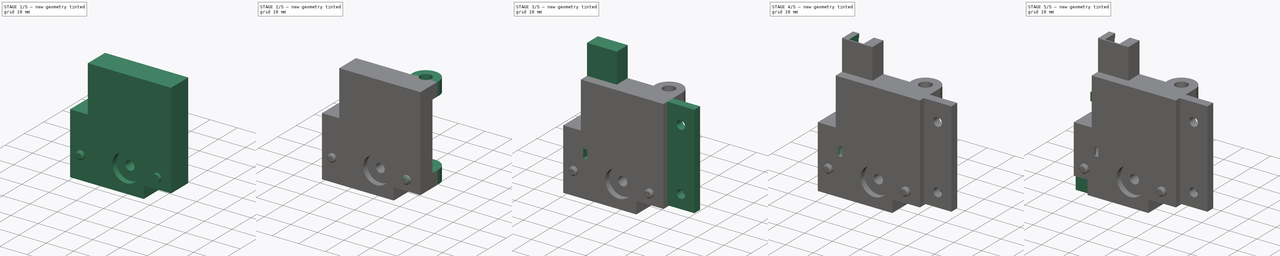
[diagram: build sequence overview — one tinted view per stage of 5, left to right]
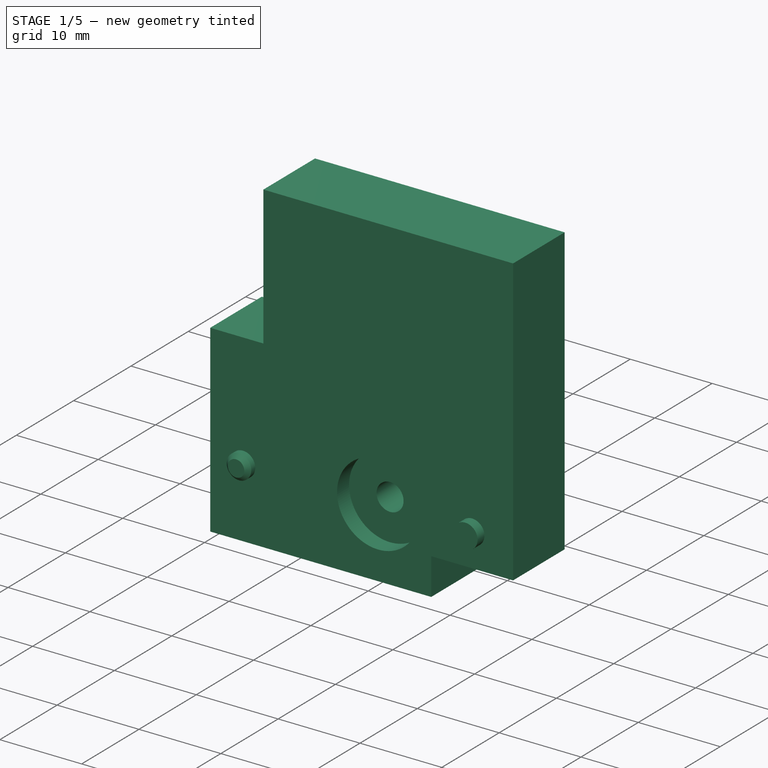
[diagram: stage 1 of 5 — iso view after this stage's code; geometry added in this stage tinted green]
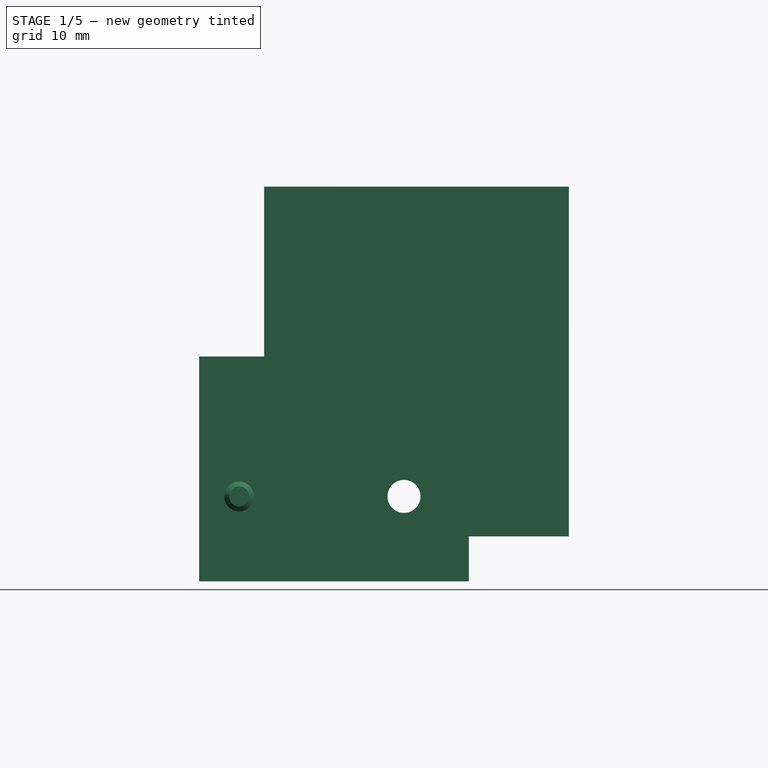
[diagram: stage 1 of 5 — front view after this stage's code; geometry added in this stage tinted green]
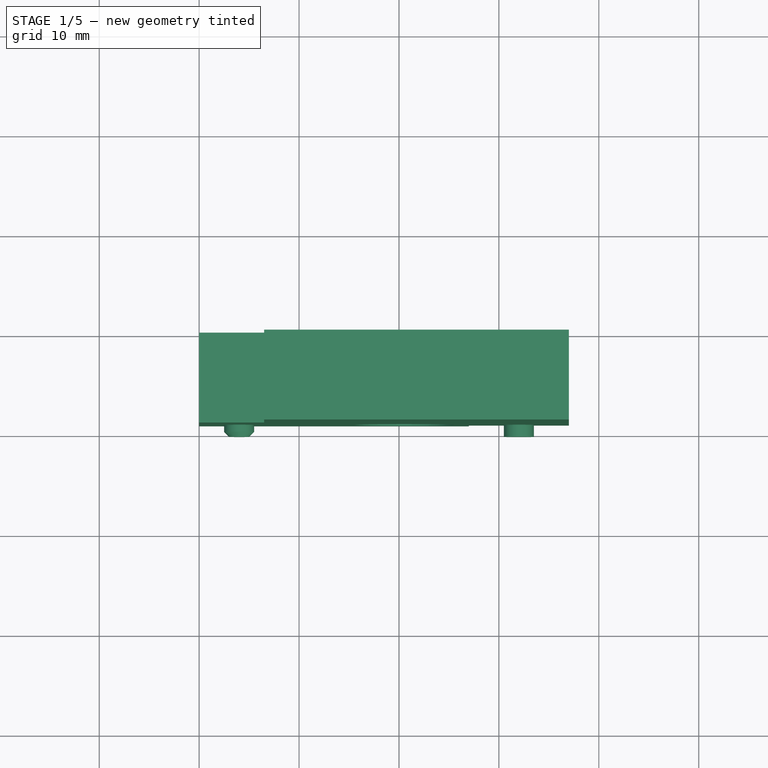
[diagram: stage 1 of 5 — top view after this stage's code; geometry added in this stage tinted green]
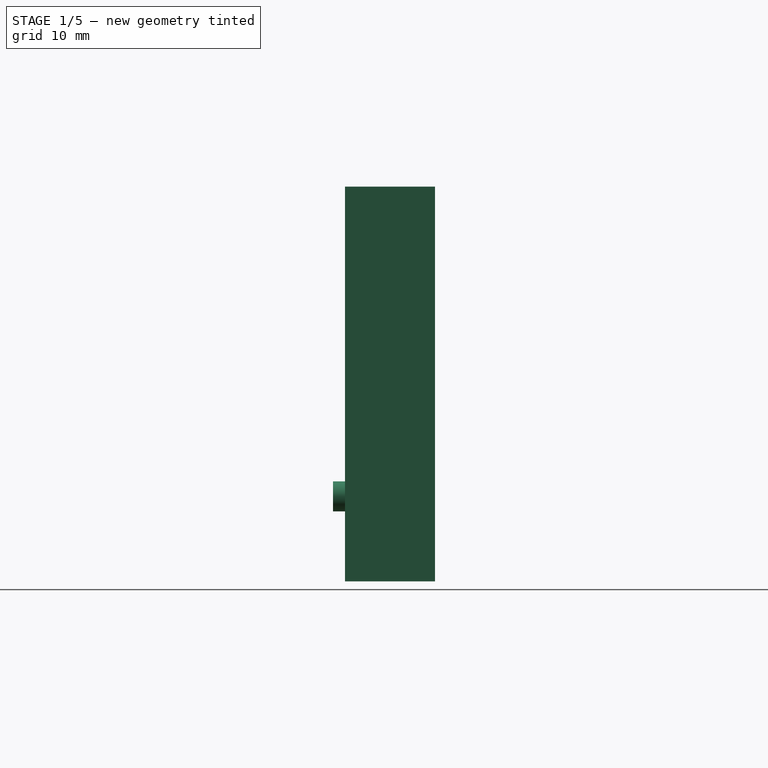
[diagram: stage 1 of 5 — right view after this stage's code; geometry added in this stage tinted green]
FCSTD DOCUMENT  (FreeCAD 1.0R39319 (Git))
Label: Chinon-lever-thing
License: All rights reserved
LicenseURL: https://en.wikipedia.org/wiki/All_rights_reserved
objects: Sketcher::SketchObject×31, PartDesign::Pad×13, PartDesign::Pocket×10, PartDesign::Hole×5, PartDesign::Chamfer×2, PartDesign::Body×1
note: 153 computed .brp shape members not serialized (recipe doc carries the construction recipe); baked Part::Feature solids carry a one-line shape summary decoded from their .brp

FEATURE [Sketcher::SketchObject] Sketch
  ArcFitTolerance = 1e-06
  FullyConstrained = true
  MakeInternals = false
  Placement = pos=(0,0,0) rot=(1,0,0;1.5708rad)
  sketch-geometry (8):
    g0: LineSegment StartX=0 StartY=0 StartZ=0 EndX=27 EndY=0 EndZ=0
    g1: LineSegment StartX=27 StartY=0 StartZ=0 EndX=27 EndY=4.5 EndZ=0
    g2: LineSegment StartX=27 StartY=4.5 StartZ=0 EndX=37 EndY=4.5 EndZ=0
    g3: LineSegment StartX=37 StartY=4.5 StartZ=0 EndX=37 EndY=39.5 EndZ=0
    g4: LineSegment StartX=37 StartY=39.5 StartZ=0 EndX=6.5 EndY=39.5 EndZ=0
    g5: LineSegment StartX=6.5 StartY=39.5 StartZ=0 EndX=6.5 EndY=22.5 EndZ=0
    g6: LineSegment StartX=6.5 StartY=22.5 StartZ=0 EndX=0 EndY=22.5 EndZ=0
    g7: LineSegment StartX=0 StartY=22.5 StartZ=0 EndX=0 EndY=0 EndZ=0
  constraints (23):
    c: Coincident(g-1,g0)
    c: PointOnObject(g0,g-1)
    c: Coincident(g0,g1)
    c: Vertical(g1)
    c: Coincident(g1,g2)
    c: Horizontal(g2)
    c: Coincident(g2,g3)
    c: Vertical(g3)
    c: Coincident(g3,g4)
    c: Horizontal(g4)
    c: Coincident(g4,g5)
    c: Vertical(g5)
    c: Coincident(g5,g6)
    c: PointOnObject(g6,g-2)
    c: Horizontal(g6)
    c: Coincident(g6,g7)
    c: Coincident(g7,g0)
    c: DistanceX(g-1,g0) = 27
    c: DistanceY(g-1,g1) = 4.5
    c: DistanceX(g-1,g2) = 37
    c: DistanceY(g-1,g3) = 39.5
    c: DistanceX(g-1,g4) = 6.5
    c: Distance(g6,g-1) = 22.5
FEATURE [PartDesign::Pad] Pad
  Direction = (0,-1,0)
  Length = 9
  Length2 = 10
  Placement = pos=(0,0,0) rot=(1,0,0;1.5708rad)
  Profile = -> Sketch
  ReferenceAxis = -> Sketch [N_Axis]
  Refine = true
  Suppressed = false
  Type = 0
FEATURE [Sketcher::SketchObject] Sketch001
  ArcFitTolerance = 1e-06
  AttachmentSupport = -> [Pad]
  FullyConstrained = true
  MakeInternals = false
  MapMode = 5
  Placement = pos=(37,0,0) rot=(0.707107,0,0.707107;3.14159rad)
FEATURE [Sketcher::SketchObject] Sketch002
  ArcFitTolerance = 1e-06
  AttachmentSupport = -> [Pad]
  FullyConstrained = true
  MakeInternals = false
  MapMode = 5
  Placement = pos=(0,-9,-2e-15) rot=(1,0,0;1.5708rad)
  sketch-geometry (3):
    g0: Circle CenterX=4 CenterY=8.5 CenterZ=0 NormalX=0 NormalY=0 NormalZ=1 AngleXU=0 Radius=1.5
    g1: Circle CenterX=32 CenterY=8.5 CenterZ=0 NormalX=0 NormalY=0 NormalZ=1 AngleXU=0 Radius=1.5
    g2: Circle CenterX=20.5 CenterY=8.5 CenterZ=0 NormalX=0 NormalY=0 NormalZ=1 AngleXU=0 Radius=5
  constraints (9):
    c: Diameter(g0) = 3
    c: DistanceX(g-1,g0) = 4
    c: DistanceY(g-1,g0) = 8.5
    c: Diameter(g1) = 3
    c: DistanceY(g-1,g1) = 8.5
    c: DistanceX(g-1,g1) = 32
    c: Diameter(g2) = 10
    c: DistanceY(g-1,g2) = 8.5
    c: DistanceX(g-1,g2) = 20.5
FEATURE [PartDesign::Pad] Pad001
  BaseFeature = -> Pad
  Direction = (0,-1,2e-16)
  Length = 1.2
  Length2 = 10
  Placement = pos=(0,0,0) rot=(1,0,0;1.5708rad)
  Profile = -> Sketch002 [Edge1]
  ReferenceAxis = -> Sketch002 [N_Axis]
  Refine = true
  Suppressed = false
  Type = 0
FEATURE [PartDesign::Chamfer] Chamfer
  Angle = 45
  Base = -> Pad001 [Edge27]
  BaseFeature = -> Pad001
  ChamferType = 0
  FlipDirection = false
  Placement = pos=(0,0,0) rot=(1,0,0;1.5708rad)
  Refine = true
  Size = 0.5
  Size2 = 1
  SupportTransform = false
  Suppressed = false
  UseAllEdges = false
FEATURE [Sketcher::SketchObject] Sketch003
  ArcFitTolerance = 1e-06
  AttachmentSupport = -> [Chamfer]
  FullyConstrained = true
  MakeInternals = false
  MapMode = 5
  Placement = pos=(0,-9,-2e-15) rot=(1,0,0;1.5708rad)
  sketch-geometry (1):
    g0: Circle CenterX=20.5 CenterY=8.5 CenterZ=0 NormalX=0 NormalY=0 NormalZ=1 AngleXU=0 Radius=5
  constraints (3):
    c: Diameter(g0) = 10
    c: DistanceX(g-1,g0) = 20.5
    c: DistanceY(g-1,g0) = 8.5
FEATURE [PartDesign::Pocket] Pocket
  BaseFeature = -> Chamfer
  Direction = (0,1,-2e-16)
  Length = 2.1
  Length2 = 5
  Placement = pos=(0,0,0) rot=(1,0,0;1.5708rad)
  Profile = -> Sketch003
  ReferenceAxis = -> Sketch003 [N_Axis]
  Refine = true
  Suppressed = false
  Type = 0
FEATURE [Sketcher::SketchObject] Sketch004
  ArcFitTolerance = 1e-06
  AttachmentSupport = -> [Pocket]
  FullyConstrained = true
  MakeInternals = false
  MapMode = 5
  Placement = pos=(0,-6.9,0) rot=(1,0,0;1.5708rad)
  sketch-geometry (1):
    g0: Circle CenterX=20.5 CenterY=8.5 CenterZ=0 NormalX=0 NormalY=0 NormalZ=1 AngleXU=0 Radius=1.65
  constraints (3):
    c: Diameter(g0) = 3.3
    c: DistanceX(g-1,g0) = 20.5
    c: DistanceY(g-1,g0) = 8.5
FEATURE [PartDesign::Hole] Hole
  BaseFeature = -> Pocket
  CustomThreadClearance = 0
  Depth = 25
  DepthType = 0
  Diameter = 3.3
  DrillForDepth = false
  DrillPoint = 1
  DrillPointAngle = 118
  HoleCutCountersinkAngle = 90
  HoleCutCustomValues = false
  HoleCutDepth = 0
  HoleCutDiameter = 6.1
  HoleCutType = 0
  ModelThread = false
  Placement = pos=(0,0,0) rot=(1,0,0;1.5708rad)
  Profile = -> Sketch004
  Refine = true
  Suppressed = false
  Tapered = false
  TaperedAngle = 90
  ThreadClass = 0
  ThreadDepth = 25
  ThreadDepthType = 0
  ThreadDirection = 0
  ThreadFit = 0
  ThreadSize = 0
  ThreadType = 0
  Threaded = false
  UseCustomThreadClearance = false
FEATURE [Sketcher::SketchObject] Sketch005
  ArcFitTolerance = 1e-06
  AttachmentSupport = -> [Hole]
  FullyConstrained = true
  MakeInternals = false
  MapMode = 5
  Placement = pos=(0,-9,-2e-15) rot=(1,0,0;1.5708rad)
  sketch-geometry (1):
    g0: Circle CenterX=32 CenterY=8.5 CenterZ=0 NormalX=0 NormalY=0 NormalZ=1 AngleXU=0 Radius=1.5
  constraints (3):
    c: Diameter(g0) = 3
    c: DistanceX(g-1,g0) = 32
    c: DistanceY(g-1,g0) = 8.5
FEATURE [PartDesign::Pad] Pad002
  BaseFeature = -> Hole
  Direction = (0,-1,2e-16)
  Length = 1.2
  Length2 = 10
  Placement = pos=(0,0,0) rot=(1,0,0;1.5708rad)
  Profile = -> Sketch005
  ReferenceAxis = -> Sketch005 [N_Axis]
  Refine = true
  Suppressed = false
  Type = 0
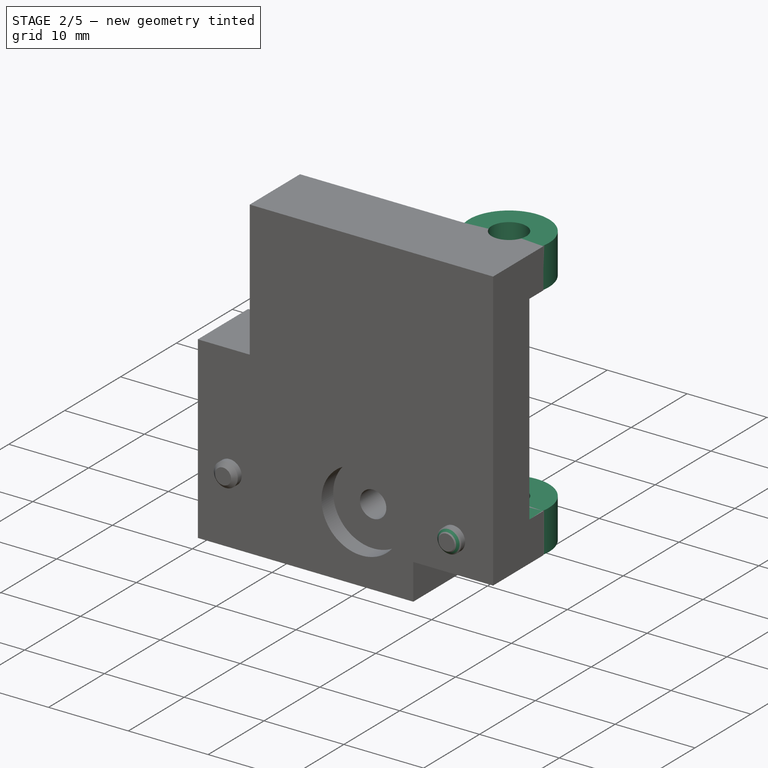
[diagram: stage 2 of 5 — iso view after this stage's code; geometry added in this stage tinted green]
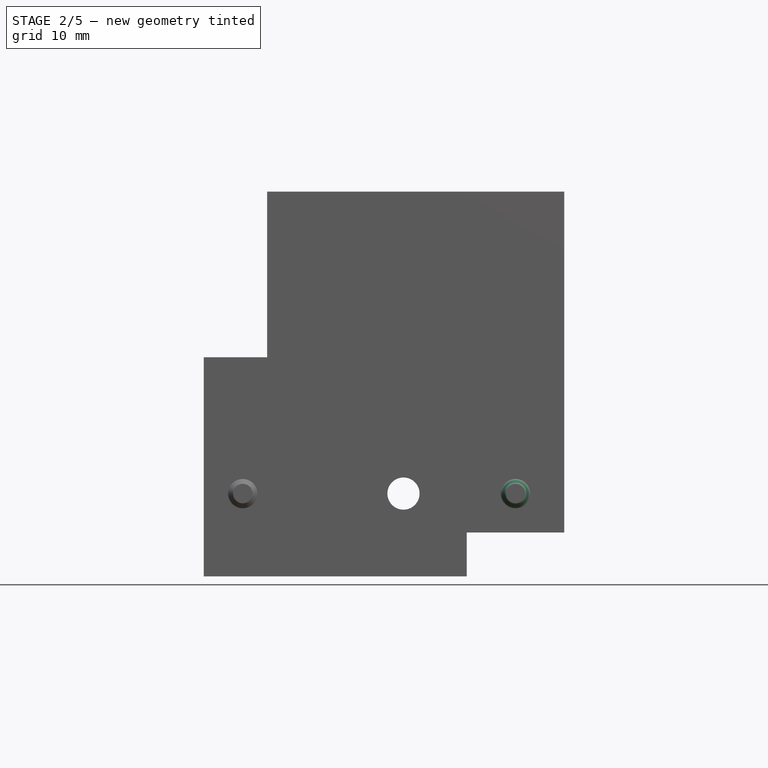
[diagram: stage 2 of 5 — front view after this stage's code; geometry added in this stage tinted green]
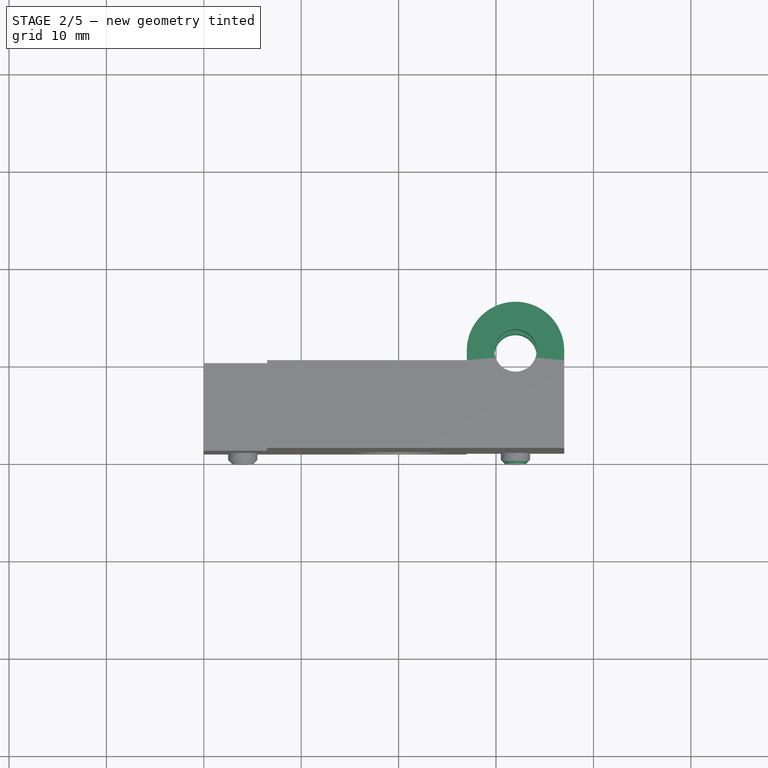
[diagram: stage 2 of 5 — top view after this stage's code; geometry added in this stage tinted green]
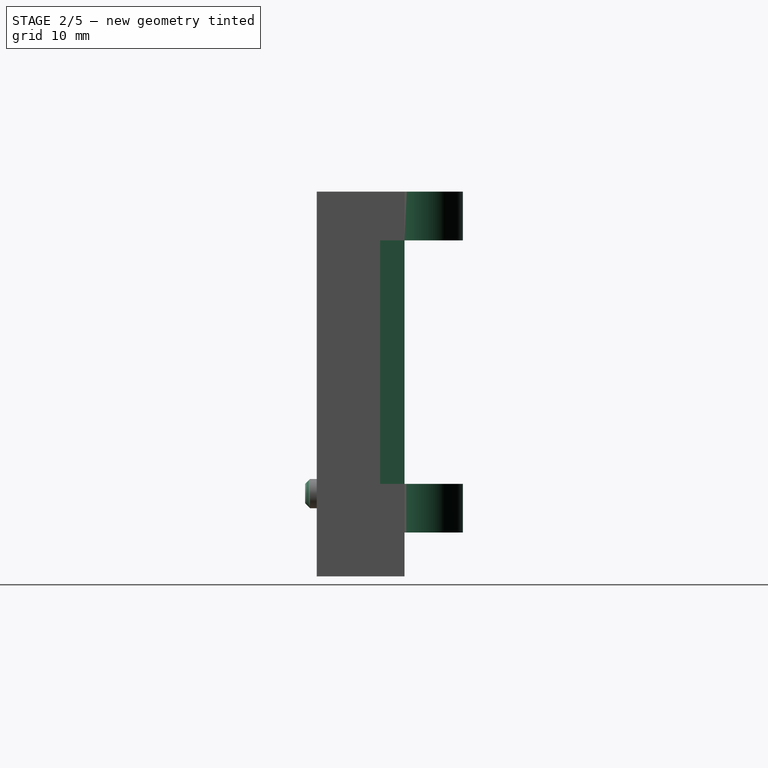
[diagram: stage 2 of 5 — right view after this stage's code; geometry added in this stage tinted green]
FEATURE [PartDesign::Chamfer] Chamfer001
  Angle = 45
  Base = -> Pad002 [Edge33]
  BaseFeature = -> Pad002
  ChamferType = 0
  FlipDirection = false
  Placement = pos=(0,0,0) rot=(1,0,0;1.5708rad)
  Refine = true
  Size = 0.5
  Size2 = 1
  SupportTransform = false
  Suppressed = false
  UseAllEdges = false
FEATURE [Sketcher::SketchObject] Sketch006
  ArcFitTolerance = 1e-06
  AttachmentSupport = -> [Chamfer001]
  FullyConstrained = true
  MakeInternals = false
  MapMode = 5
  Placement = pos=(0,8.7e-15,39.5) rot=(0,0,1;3.14159rad)
  sketch-geometry (1):
    g0: Circle CenterX=-32 CenterY=-1 CenterZ=0 NormalX=0 NormalY=0 NormalZ=1 AngleXU=0 Radius=5
  constraints (3):
    c: Diameter(g0) = 10
    c: DistanceX(g0,g-1) = 32
    c: DistanceY(g-1,g0) = -1
FEATURE [PartDesign::Pad] Pad003
  BaseFeature = -> Chamfer001
  Direction = (0,0,1)
  Length = 5
  Length2 = 10
  Placement = pos=(0,0,0) rot=(1,0,0;1.5708rad)
  Profile = -> Sketch006
  ReferenceAxis = -> Sketch006 [N_Axis]
  Refine = true
  Reversed = true
  Suppressed = false
  Type = 0
FEATURE [Sketcher::SketchObject] Sketch007
  ArcFitTolerance = 1e-06
  AttachmentSupport = -> [Pad003]
  FullyConstrained = true
  MakeInternals = false
  MapMode = 5
  Placement = pos=(0,0,39.5) rot=(0,0,1;3.14159rad)
  sketch-geometry (1):
    g0: Circle CenterX=-32 CenterY=-1 CenterZ=0 NormalX=0 NormalY=0 NormalZ=1 AngleXU=0 Radius=2
  constraints (3):
    c: Diameter(g0) = 4
    c: DistanceX(g0,g-1) = 32
    c: Distance(g0,g-1) = 1
FEATURE [PartDesign::Hole] Hole001  label="ShaftBore1"
  BaseFeature = -> Pad003
  CustomThreadClearance = 0
  Depth = 5
  DepthType = 0
  Diameter = 4.35
  DrillForDepth = false
  DrillPoint = 1
  DrillPointAngle = 118
  HoleCutCountersinkAngle = 90
  HoleCutCustomValues = false
  HoleCutDepth = 0
  HoleCutDiameter = 6.1
  HoleCutType = 0
  ModelThread = false
  Placement = pos=(0,0,0) rot=(1,0,0;1.5708rad)
  Profile = -> Sketch007
  Refine = true
  Suppressed = false
  Tapered = false
  TaperedAngle = 90
  ThreadClass = 0
  ThreadDepth = 5
  ThreadDepthType = 0
  ThreadDirection = 0
  ThreadFit = 0
  ThreadSize = 0
  ThreadType = 0
  Threaded = false
  UseCustomThreadClearance = false
FEATURE [Sketcher::SketchObject] Sketch008
  ArcFitTolerance = 1e-06
  AttachmentSupport = -> [Hole001]
  FullyConstrained = true
  MakeInternals = false
  MapMode = 5
  Placement = pos=(0,1e-15,4.5) rot=(1,0,0;3.14159rad)
  sketch-geometry (1):
    g0: Circle CenterX=32 CenterY=-1 CenterZ=0 NormalX=0 NormalY=0 NormalZ=1 AngleXU=0 Radius=5
  constraints (3):
    c: Diameter(g0) = 10
    c: DistanceX(g-1,g0) = 32
    c: DistanceY(g0,g-1) = 1
FEATURE [PartDesign::Pad] Pad004
  BaseFeature = -> Hole001
  Direction = (0,0,-1)
  Length = 5
  Length2 = 10
  Placement = pos=(0,0,0) rot=(1,0,0;1.5708rad)
  Profile = -> Sketch008
  ReferenceAxis = -> Sketch008 [N_Axis]
  Refine = true
  Reversed = true
  Suppressed = false
  Type = 0
FEATURE [Sketcher::SketchObject] Sketch009
  ArcFitTolerance = 1e-06
  AttachmentSupport = -> [Pad004]
  FullyConstrained = true
  MakeInternals = false
  MapMode = 5
  Placement = pos=(0,5e-16,4.5) rot=(1,0,0;3.14159rad)
  sketch-geometry (1):
    g0: Circle CenterX=32 CenterY=-1 CenterZ=0 NormalX=0 NormalY=0 NormalZ=1 AngleXU=0 Radius=2
  constraints (3):
    c: Diameter(g0) = 4
    c: DistanceX(g-1,g0) = 32
    c: DistanceY(g0,g-1) = 1
FEATURE [PartDesign::Hole] Hole002  label="ShaftBore2"
  BaseFeature = -> Pad004
  CustomThreadClearance = 0
  Depth = 5
  DepthType = 0
  Diameter = 4.35
  DrillForDepth = false
  DrillPoint = 1
  DrillPointAngle = 118
  HoleCutCountersinkAngle = 90
  HoleCutCustomValues = false
  HoleCutDepth = 0
  HoleCutDiameter = 6.1
  HoleCutType = 0
  ModelThread = false
  Placement = pos=(0,0,0) rot=(1,0,0;1.5708rad)
  Profile = -> Sketch009
  Refine = true
  Suppressed = false
  Tapered = false
  TaperedAngle = 90
  ThreadClass = 0
  ThreadDepth = 5
  ThreadDepthType = 0
  ThreadDirection = 0
  ThreadFit = 0
  ThreadSize = 0
  ThreadType = 0
  Threaded = false
  UseCustomThreadClearance = false
FEATURE [Sketcher::SketchObject] Sketch010
  ArcFitTolerance = 1e-06
  AttachmentSupport = -> [Hole002]
  FullyConstrained = true
  MakeInternals = false
  MapMode = 5
  Placement = pos=(0,0,0) rot=(-1,0,0;1.5708rad)
  sketch-geometry (4):
    g0: LineSegment StartX=27 StartY=-9.5 StartZ=0 EndX=27 EndY=-34.5 EndZ=0
    g1: LineSegment StartX=27 StartY=-34.5 StartZ=0 EndX=37 EndY=-34.5 EndZ=0
    g2: LineSegment StartX=37 StartY=-34.5 StartZ=0 EndX=37 EndY=-9.5 EndZ=0
    g3: LineSegment StartX=37 StartY=-9.5 StartZ=0 EndX=27 EndY=-9.5 EndZ=0
  constraints (12):
    c: Coincident(g0,g1)
    c: Coincident(g1,g2)
    c: Coincident(g2,g3)
    c: Coincident(g3,g0)
    c: Vertical(g0)
    c: Vertical(g2)
    c: Horizontal(g1)
    c: Horizontal(g3)
    c: DistanceX(g-1,g0) = 27
    c: DistanceY(g2,g-1) = 9.5
    c: DistanceY(g1,g-1) = 34.5
    c: DistanceX(g-1,g2) = 37
FEATURE [PartDesign::Pocket] Pocket001
  BaseFeature = -> Hole002
  Direction = (0,-1,-2e-16)
  Length = 2.5
  Length2 = 5
  Placement = pos=(0,0,0) rot=(1,0,0;1.5708rad)
  Profile = -> Sketch010
  ReferenceAxis = -> Sketch010 [N_Axis]
  Refine = true
  Suppressed = false
  Type = 0
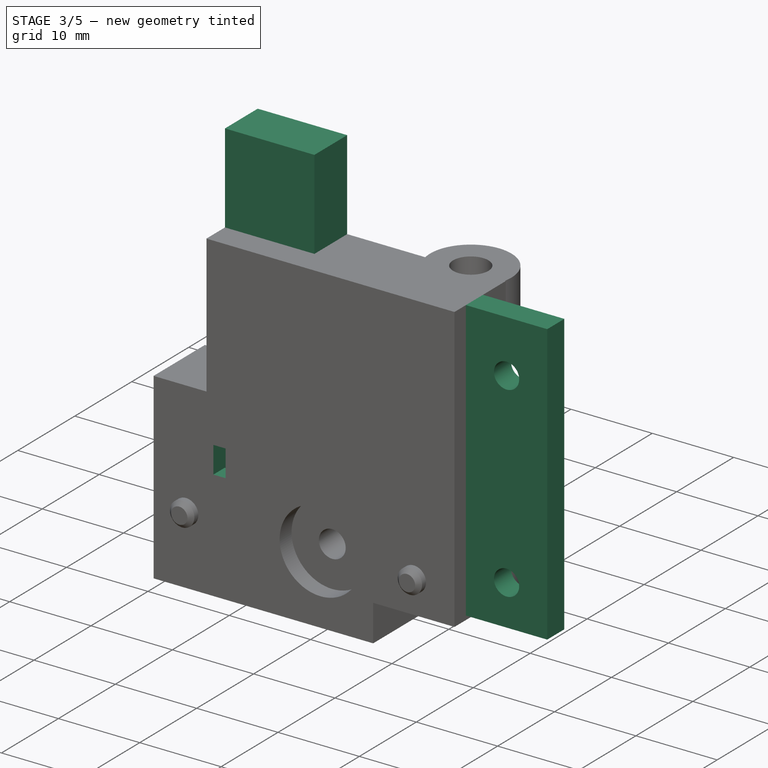
[diagram: stage 3 of 5 — iso view after this stage's code; geometry added in this stage tinted green]
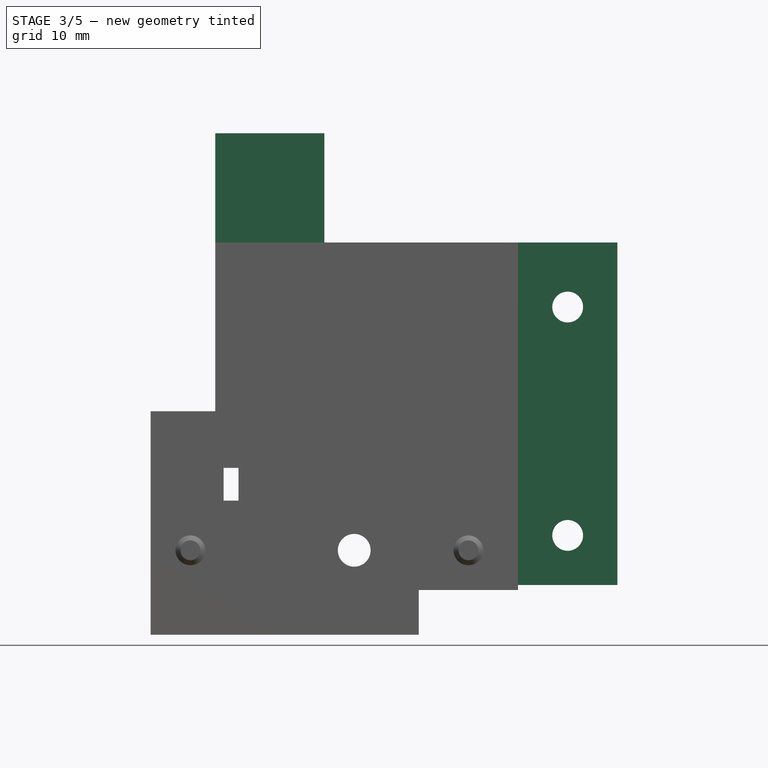
[diagram: stage 3 of 5 — front view after this stage's code; geometry added in this stage tinted green]
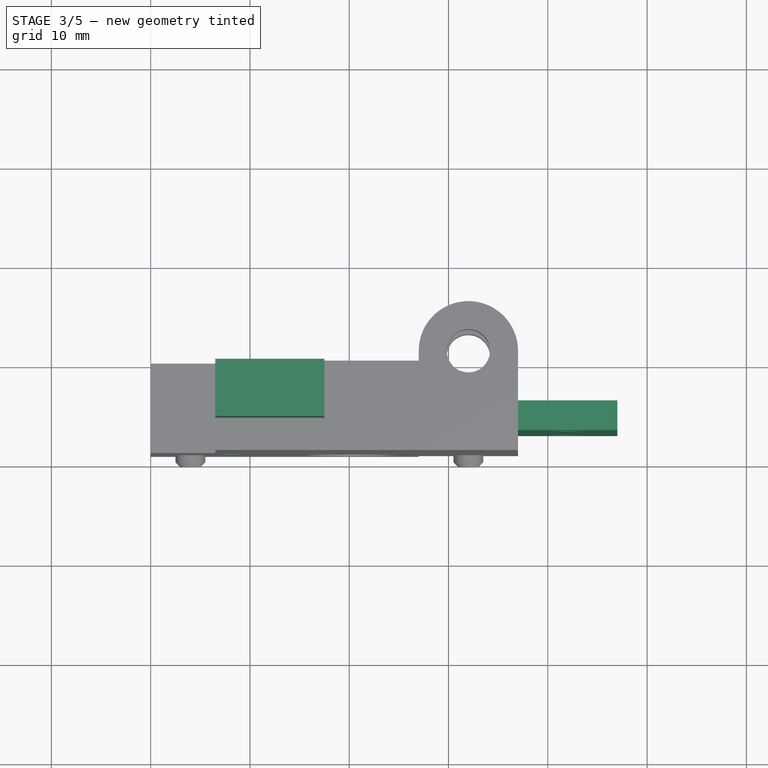
[diagram: stage 3 of 5 — top view after this stage's code; geometry added in this stage tinted green]
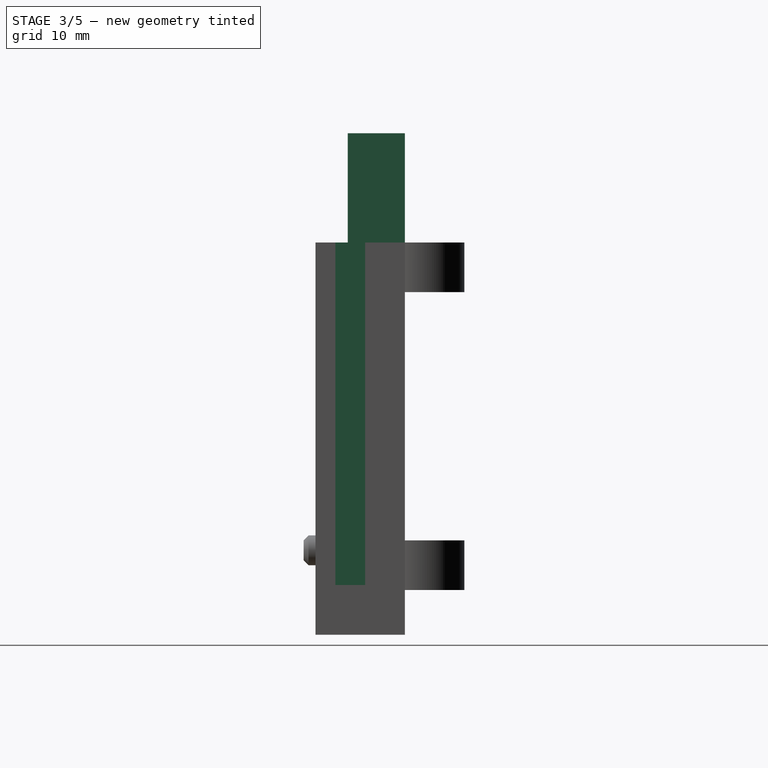
[diagram: stage 3 of 5 — right view after this stage's code; geometry added in this stage tinted green]
FEATURE [Sketcher::SketchObject] Sketch011
  ArcFitTolerance = 1e-06
  AttachmentSupport = -> [Pocket001]
  FullyConstrained = true
  MakeInternals = false
  MapMode = 5
  Placement = pos=(0,0,39.5) rot=(0,0,1;3.14159rad)
  sketch-geometry (4):
    g0: LineSegment StartX=-6.5 StartY=5.75 StartZ=0 EndX=-17.5 EndY=5.75 EndZ=0
    g1: LineSegment StartX=-17.5 StartY=5.75 StartZ=0 EndX=-17.5 EndY=0 EndZ=0
    g2: LineSegment StartX=-17.5 StartY=0 StartZ=0 EndX=-6.5 EndY=0 EndZ=0
    g3: LineSegment StartX=-6.5 StartY=0 StartZ=0 EndX=-6.5 EndY=5.75 EndZ=0
  constraints (12):
    c: Coincident(g0,g1)
    c: Coincident(g1,g2)
    c: Coincident(g2,g3)
    c: Coincident(g3,g0)
    c: Horizontal(g0)
    c: Horizontal(g2)
    c: Vertical(g1)
    c: Vertical(g3)
    c: Distance(g1,g3) = 11
    c: Distance(g0,g2) = 5.75
    c: PointOnObject(g1,g-1)
    c: DistanceX(g2,g-1) = 6.5
FEATURE [PartDesign::Pad] Pad005
  BaseFeature = -> Pocket001
  Direction = (0,0,1)
  Length = 11
  Length2 = 10
  Placement = pos=(0,0,0) rot=(1,0,0;1.5708rad)
  Profile = -> Sketch011
  ReferenceAxis = -> Sketch011 [N_Axis]
  Refine = true
  Suppressed = false
  Type = 0
FEATURE [Sketcher::SketchObject] Sketch012
  ArcFitTolerance = 1e-06
  AttachmentSupport = -> [Pad005]
  FullyConstrained = true
  MakeInternals = false
  MapMode = 5
  Placement = pos=(37,0,0) rot=(0.707107,0,0.707107;3.14159rad)
  sketch-geometry (4):
    g0: LineSegment StartX=5 StartY=7 StartZ=0 EndX=5 EndY=4 EndZ=0
    g1: LineSegment StartX=5 StartY=4 StartZ=0 EndX=39.5 EndY=4 EndZ=0
    g2: LineSegment StartX=39.5 StartY=4 StartZ=0 EndX=39.5 EndY=7 EndZ=0
    g3: LineSegment StartX=39.5 StartY=7 StartZ=0 EndX=5 EndY=7 EndZ=0
  constraints (12):
    c: Coincident(g0,g1)
    c: Coincident(g1,g2)
    c: Coincident(g2,g3)
    c: Coincident(g3,g0)
    c: Vertical(g0)
    c: Vertical(g2)
    c: Horizontal(g1)
    c: Horizontal(g3)
    c: Distance(g0,g2) = 34.5
    c: Distance(g1,g3) = 3
    c: DistanceX(g-1,g0) = 5
    c: DistanceY(g-1,g1) = 4
FEATURE [PartDesign::Pad] Pad006
  BaseFeature = -> Pad005
  Direction = (1,0,-2e-16)
  Length = 10
  Length2 = 10
  Placement = pos=(0,0,0) rot=(1,0,0;1.5708rad)
  Profile = -> Sketch012
  ReferenceAxis = -> Sketch012 [N_Axis]
  Refine = true
  Suppressed = false
  Type = 0
FEATURE [Sketcher::SketchObject] Sketch013
  ArcFitTolerance = 1e-06
  AttachmentSupport = -> [Pad006]
  FullyConstrained = true
  MakeInternals = false
  MapMode = 5
  Placement = pos=(0,-7,0) rot=(1,0,0;1.5708rad)
  sketch-geometry (1):
    g0: Circle CenterX=42 CenterY=10 CenterZ=0 NormalX=0 NormalY=0 NormalZ=1 AngleXU=0 Radius=1.5
  constraints (3):
    c: Diameter(g0) = 3
    c: DistanceX(g-1,g0) = 42
    c: DistanceY(g-1,g0) = 10
FEATURE [PartDesign::Hole] Hole003
  BaseFeature = -> Pad006
  CustomThreadClearance = 0
  Depth = 25
  DepthType = 0
  Diameter = 3.1
  DrillForDepth = false
  DrillPoint = 1
  DrillPointAngle = 118
  HoleCutCountersinkAngle = 90
  HoleCutCustomValues = false
  HoleCutDepth = 0
  HoleCutDiameter = 6.1
  HoleCutType = 0
  ModelThread = false
  Placement = pos=(0,0,0) rot=(1,0,0;1.5708rad)
  Profile = -> Sketch013
  Refine = true
  Suppressed = false
  Tapered = false
  TaperedAngle = 90
  ThreadClass = 0
  ThreadDepth = 25
  ThreadDepthType = 0
  ThreadDirection = 0
  ThreadFit = 0
  ThreadSize = 0
  ThreadType = 0
  Threaded = false
  UseCustomThreadClearance = false
FEATURE [Sketcher::SketchObject] Sketch014
  ArcFitTolerance = 1e-06
  AttachmentSupport = -> [Hole003]
  FullyConstrained = true
  MakeInternals = false
  MapMode = 5
  Placement = pos=(0,-7,0) rot=(1,0,0;1.5708rad)
  sketch-geometry (1):
    g0: Circle CenterX=42 CenterY=33 CenterZ=0 NormalX=0 NormalY=0 NormalZ=1 AngleXU=0 Radius=1.5
  constraints (3):
    c: Diameter(g0) = 3
    c: DistanceX(g-1,g0) = 42
    c: DistanceY(g-1,g0) = 33
FEATURE [PartDesign::Hole] Hole004
  BaseFeature = -> Hole003
  CustomThreadClearance = 0
  Depth = 25
  DepthType = 0
  Diameter = 3.1
  DrillForDepth = false
  DrillPoint = 1
  DrillPointAngle = 118
  HoleCutCountersinkAngle = 90
  HoleCutCustomValues = false
  HoleCutDepth = 0
  HoleCutDiameter = 6.1
  HoleCutType = 0
  ModelThread = false
  Placement = pos=(0,0,0) rot=(1,0,0;1.5708rad)
  Profile = -> Sketch014
  Refine = true
  Suppressed = false
  Tapered = false
  TaperedAngle = 90
  ThreadClass = 0
  ThreadDepth = 25
  ThreadDepthType = 0
  ThreadDirection = 0
  ThreadFit = 0
  ThreadSize = 0
  ThreadType = 0
  Threaded = false
  UseCustomThreadClearance = false
FEATURE [Sketcher::SketchObject] Sketch015
  ArcFitTolerance = 1e-06
  AttachmentSupport = -> [Hole004]
  FullyConstrained = true
  MakeInternals = false
  MapMode = 5
  Placement = pos=(0,-9,-2e-15) rot=(1,0,0;1.5708rad)
  sketch-geometry (4):
    g0: LineSegment StartX=7.35 StartY=13.5 StartZ=0 EndX=8.85 EndY=13.5 EndZ=0
    g1: LineSegment StartX=8.85 StartY=13.5 StartZ=0 EndX=8.85 EndY=16.8 EndZ=0
    g2: LineSegment StartX=8.85 StartY=16.8 StartZ=0 EndX=7.35 EndY=16.8 EndZ=0
    g3: LineSegment StartX=7.35 StartY=16.8 StartZ=0 EndX=7.35 EndY=13.5 EndZ=0
  constraints (12):
    c: Coincident(g0,g1)
    c: Coincident(g1,g2)
    c: Coincident(g2,g3)
    c: Coincident(g3,g0)
    c: Horizontal(g0)
    c: Horizontal(g2)
    c: Vertical(g1)
    c: Vertical(g3)
    c: Distance(g1,g3) = 1.5
    c: Distance(g0,g2) = 3.3
    c: DistanceY(g-1,g0) = 13.5
    c: DistanceX(g-1,g2) = 7.35
FEATURE [PartDesign::Pocket] Pocket002
  BaseFeature = -> Hole004
  Direction = (0,1,-2e-16)
  Length = 2
  Length2 = 5
  Placement = pos=(0,0,0) rot=(1,0,0;1.5708rad)
  Profile = -> Sketch015
  ReferenceAxis = -> Sketch015 [N_Axis]
  Refine = true
  Suppressed = false
  Type = 0
FEATURE [Sketcher::SketchObject] Sketch016
  ArcFitTolerance = 1e-06
  AttachmentSupport = -> [Pocket002]
  FullyConstrained = true
  MakeInternals = false
  MapMode = 5
  Placement = pos=(0,4.3e-15,0) rot=(-1,0,0;1.5708rad)
  sketch-geometry (4):
    g0: LineSegment StartX=4.5 StartY=-10 StartZ=0 EndX=4.5 EndY=-18 EndZ=0
    g1: LineSegment StartX=4.5 StartY=-18 StartZ=0 EndX=12.5 EndY=-18 EndZ=0
    g2: LineSegment StartX=12.5 StartY=-18 StartZ=0 EndX=12.5 EndY=-10 EndZ=0
    g3: LineSegment StartX=12.5 StartY=-10 StartZ=0 EndX=4.5 EndY=-10 EndZ=0
  constraints (12):
    c: Coincident(g0,g1)
    c: Coincident(g1,g2)
    c: Coincident(g2,g3)
    c: Coincident(g3,g0)
    c: Vertical(g0)
    c: Vertical(g2)
    c: Horizontal(g1)
    c: Horizontal(g3)
    c: Distance(g0,g2) = 8
    c: Distance(g1,g3) = 8
    c: DistanceX(g-1,g0) = 4.5
    c: DistanceY(g2,g-1) = 10
FEATURE [PartDesign::Pocket] Pocket003
  BaseFeature = -> Pocket002
  Direction = (0,-1,-2e-16)
  Length = 7
  Length2 = 5
  Placement = pos=(0,0,0) rot=(1,0,0;1.5708rad)
  Profile = -> Sketch016
  ReferenceAxis = -> Sketch016 [N_Axis]
  Refine = true
  Suppressed = false
  Type = 0
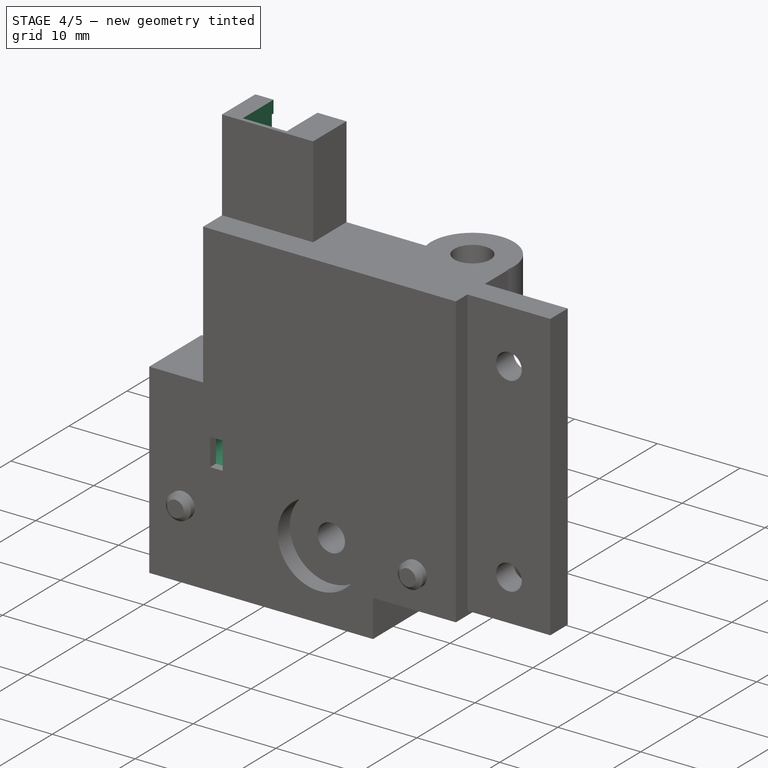
[diagram: stage 4 of 5 — iso view after this stage's code; geometry added in this stage tinted green]
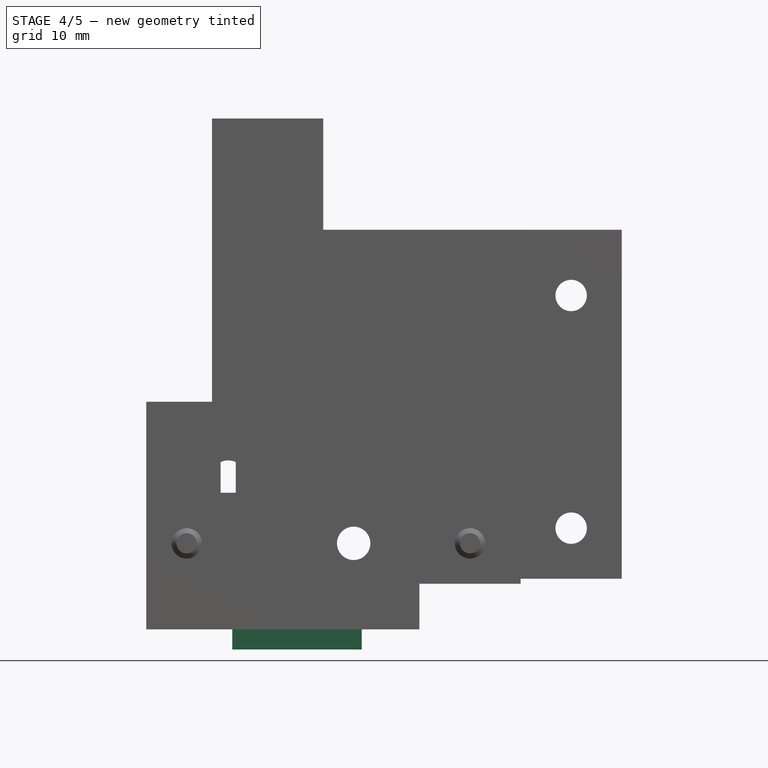
[diagram: stage 4 of 5 — front view after this stage's code; geometry added in this stage tinted green]
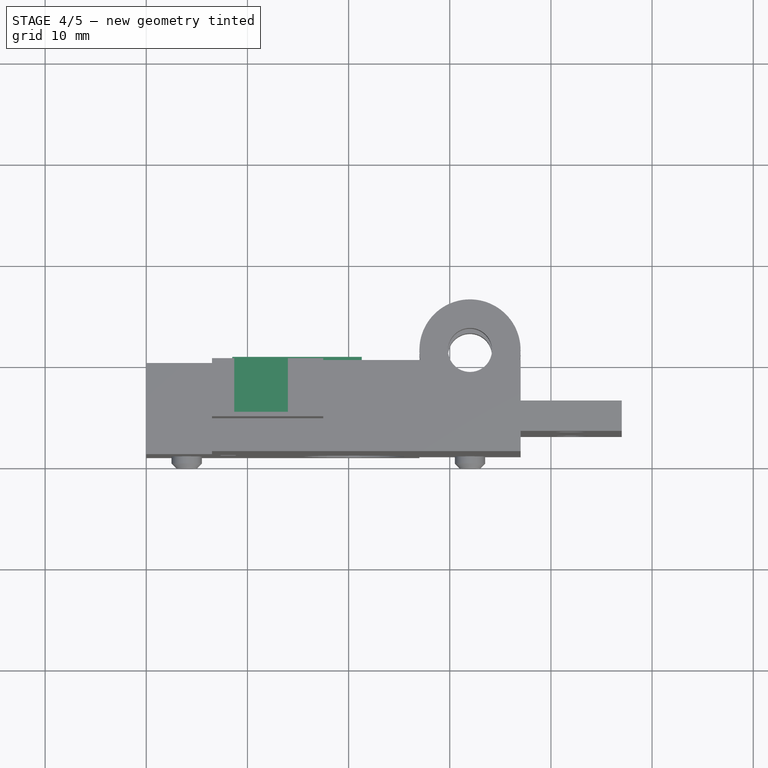
[diagram: stage 4 of 5 — top view after this stage's code; geometry added in this stage tinted green]
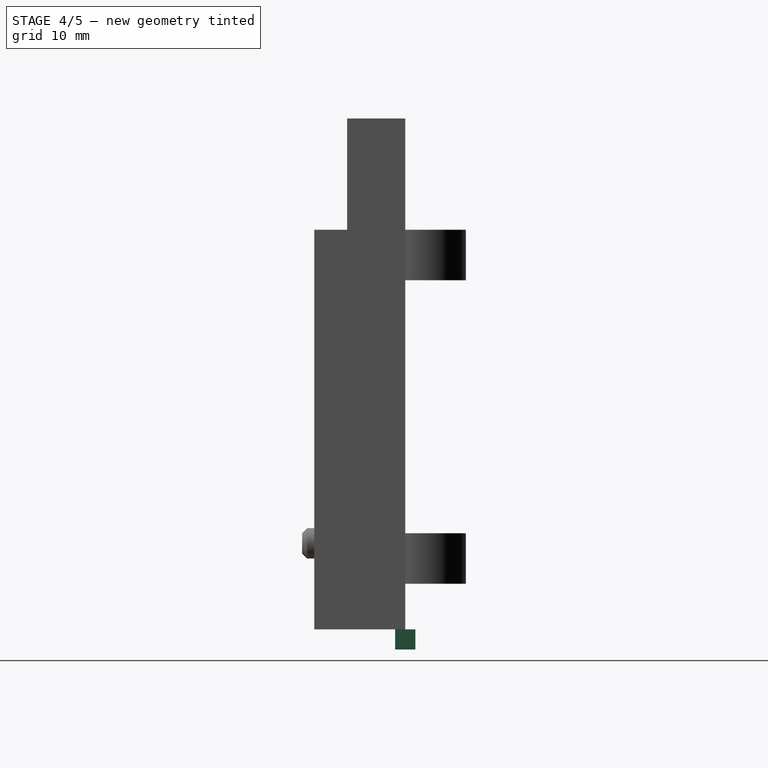
[diagram: stage 4 of 5 — right view after this stage's code; geometry added in this stage tinted green]
FEATURE [Sketcher::SketchObject] Sketch017
  ArcFitTolerance = 1e-06
  AttachmentSupport = -> [Pocket003]
  FullyConstrained = true
  MakeInternals = false
  MapMode = 5
  Placement = pos=(0,-7,0) rot=(-1,0,0;1.5708rad)
FEATURE [Sketcher::SketchObject] Sketch018
  ArcFitTolerance = 1e-06
  AttachmentSupport = -> [Pocket003]
  FullyConstrained = true
  MakeInternals = false
  MapMode = 5
  Placement = pos=(0,-7,0) rot=(-1,0,0;1.5708rad)
  sketch-geometry (1):
    g0: Circle CenterX=8.1 CenterY=-15 CenterZ=0 NormalX=0 NormalY=0 NormalZ=1 AngleXU=0 Radius=2.5
  constraints (3):
    c: Diameter(g0) = 5
    c: DistanceY(g0,g-1) = 15
    c: DistanceX(g-1,g0) = 8.1
FEATURE [PartDesign::Pad] Pad007
  BaseFeature = -> Pocket003
  Direction = (0,1,2e-16)
  Length = 2.5
  Length2 = 10
  Placement = pos=(0,0,0) rot=(1,0,0;1.5708rad)
  Profile = -> Sketch018
  ReferenceAxis = -> Sketch018 [N_Axis]
  Refine = true
  Suppressed = false
  Type = 0
FEATURE [Sketcher::SketchObject] Sketch019
  ArcFitTolerance = 1e-06
  AttachmentSupport = -> [Pad007]
  FullyConstrained = true
  MakeInternals = false
  MapMode = 5
  Placement = pos=(0,-4.5,0) rot=(-1,0,0;1.5708rad)
  sketch-geometry (1):
    g0: Circle CenterX=8.1 CenterY=-15 CenterZ=0 NormalX=0 NormalY=0 NormalZ=1 AngleXU=0 Radius=1.7
  constraints (3):
    c: Diameter(g0) = 3.4
    c: DistanceX(g-1,g0) = 8.1
    c: DistanceY(g0,g-1) = 15
FEATURE [PartDesign::Pocket] Pocket004
  BaseFeature = -> Pad007
  Direction = (0,-1,-2e-16)
  Length = 3.5
  Length2 = 5
  Placement = pos=(0,0,0) rot=(1,0,0;1.5708rad)
  Profile = -> Sketch019
  ReferenceAxis = -> Sketch019 [N_Axis]
  Refine = true
  Suppressed = false
  Type = 0
FEATURE [Sketcher::SketchObject] Sketch020
  ArcFitTolerance = 1e-06
  AttachmentSupport = -> [Pocket004]
  FullyConstrained = true
  MakeInternals = false
  MapMode = 5
  Placement = pos=(0,4.3e-15,0) rot=(-1,0,0;1.5708rad)
  sketch-geometry (4):
    g0: LineSegment StartX=8.5 StartY=-49 StartZ=0 EndX=15 EndY=-49 EndZ=0
    g1: LineSegment StartX=15 StartY=-49 StartZ=0 EndX=15 EndY=-36.5 EndZ=0
    g2: LineSegment StartX=15 StartY=-36.5 StartZ=0 EndX=8.5 EndY=-36.5 EndZ=0
    g3: LineSegment StartX=8.5 StartY=-36.5 StartZ=0 EndX=8.5 EndY=-49 EndZ=0
  constraints (12):
    c: Coincident(g0,g1)
    c: Coincident(g1,g2)
    c: Coincident(g2,g3)
    c: Coincident(g3,g0)
    c: Horizontal(g0)
    c: Horizontal(g2)
    c: Vertical(g1)
    c: Vertical(g3)
    c: Distance(g1,g3) = 6.5
    c: Distance(g0,g2) = 12.5
    c: DistanceY(g0,g-1) = 49
    c: DistanceX(g-1,g0) = 8.5
FEATURE [PartDesign::Pocket] Pocket005
  BaseFeature = -> Pocket004
  Direction = (0,-1,-2e-16)
  Length = 4.5
  Length2 = 5
  Placement = pos=(0,0,0) rot=(1,0,0;1.5708rad)
  Profile = -> Sketch020
  ReferenceAxis = -> Sketch020 [N_Axis]
  Refine = true
  Suppressed = false
  Type = 0
FEATURE [Sketcher::SketchObject] Sketch021
  ArcFitTolerance = 1e-06
  AttachmentSupport = -> [Pocket005]
  FullyConstrained = true
  MakeInternals = false
  MapMode = 5
  Placement = pos=(0,0,50.5) rot=(0,0,1;3.14159rad)
  sketch-geometry (4):
    g0: LineSegment StartX=-8.7 StartY=0 StartZ=0 EndX=-8.7 EndY=5.3 EndZ=0
    g1: LineSegment StartX=-8.7 StartY=5.3 StartZ=0 EndX=-14 EndY=5.3 EndZ=0
    g2: LineSegment StartX=-14 StartY=5.3 StartZ=0 EndX=-14 EndY=0 EndZ=0
    g3: LineSegment StartX=-14 StartY=0 StartZ=0 EndX=-8.7 EndY=0 EndZ=0
  constraints (12):
    c: Coincident(g0,g1)
    c: Coincident(g1,g2)
    c: Coincident(g2,g3)
    c: Coincident(g3,g0)
    c: Vertical(g0)
    c: Vertical(g2)
    c: Horizontal(g1)
    c: Horizontal(g3)
    c: Distance(g0,g2) = 5.3
    c: Distance(g1,g3) = 5.3
    c: PointOnObject(g0,g-1)
    c: DistanceX(g1,g-1) = 14
FEATURE [PartDesign::Pocket] Pocket006
  BaseFeature = -> Pocket005
  Direction = (0,0,-1)
  Length = 2
  Length2 = 5
  Placement = pos=(0,0,0) rot=(1,0,0;1.5708rad)
  Profile = -> Sketch021
  ReferenceAxis = -> Sketch021 [N_Axis]
  Refine = true
  Suppressed = false
  Type = 0
FEATURE [Sketcher::SketchObject] Sketch022
  ArcFitTolerance = 1e-06
  AttachmentSupport = -> [Pocket006]
  FullyConstrained = true
  MakeInternals = false
  MapMode = 5
  Placement = pos=(0,0,0) rot=(1,0,0;3.14159rad)
  sketch-geometry (4):
    g0: LineSegment StartX=8.5 StartY=-1 StartZ=0 EndX=21.3 EndY=-1 EndZ=0
    g1: LineSegment StartX=21.3 StartY=-1 StartZ=0 EndX=21.3 EndY=1 EndZ=0
    g2: LineSegment StartX=21.3 StartY=1 StartZ=0 EndX=8.5 EndY=1 EndZ=0
    g3: LineSegment StartX=8.5 StartY=1 StartZ=0 EndX=8.5 EndY=-1 EndZ=0
  constraints (12):
    c: Coincident(g0,g1)
    c: Coincident(g1,g2)
    c: Coincident(g2,g3)
    c: Coincident(g3,g0)
    c: Horizontal(g0)
    c: Horizontal(g2)
    c: Vertical(g1)
    c: Vertical(g3)
    c: Distance(g1,g3) = 12.8
    c: Distance(g0,g2) = 2
    c: DistanceX(g-1,g0) = 8.5
    c: DistanceY(g0,g-1) = 1
FEATURE [PartDesign::Pad] Pad008
  BaseFeature = -> Pocket006
  Direction = (0,0,-1)
  Length = 2
  Length2 = 10
  Placement = pos=(0,0,0) rot=(1,0,0;1.5708rad)
  Profile = -> Sketch022
  ReferenceAxis = -> Sketch022 [N_Axis]
  Refine = true
  Suppressed = false
  Type = 0
FEATURE [Sketcher::SketchObject] Sketch023
  ArcFitTolerance = 1e-06
  AttachmentSupport = -> [Pad008]
  FullyConstrained = true
  MakeInternals = false
  MapMode = 5
  Placement = pos=(0,4.3e-15,0) rot=(-1,0,0;1.5708rad)
  sketch-geometry (4):
    g0: LineSegment StartX=1.5 StartY=0 StartZ=0 EndX=1.5 EndY=-7.5 EndZ=0
    g1: LineSegment StartX=1.5 StartY=-7.5 StartZ=0 EndX=7.22 EndY=-7.5 EndZ=0
    g2: LineSegment StartX=7.22 StartY=-7.5 StartZ=0 EndX=7.22 EndY=0 EndZ=0
    g3: LineSegment StartX=7.22 StartY=0 StartZ=0 EndX=1.5 EndY=0 EndZ=0
  constraints (12):
    c: Coincident(g0,g1)
    c: Coincident(g1,g2)
    c: Coincident(g2,g3)
    c: Coincident(g3,g0)
    c: Vertical(g0)
    c: Vertical(g2)
    c: Horizontal(g1)
    c: Horizontal(g3)
    c: PointOnObject(g0,g-1)
    c: DistanceX(g-1,g2) = 7.22
    c: DistanceY(g1,g-1) = 7.5
    c: DistanceX(g-1,g0) = 1.5
FEATURE [PartDesign::Pocket] Pocket007
  BaseFeature = -> Pad008
  Direction = (0,-1,-2e-16)
  Length = 6
  Length2 = 5
  Placement = pos=(0,0,0) rot=(1,0,0;1.5708rad)
  Profile = -> Sketch023
  ReferenceAxis = -> Sketch023 [N_Axis]
  Refine = true
  Suppressed = false
  Type = 0
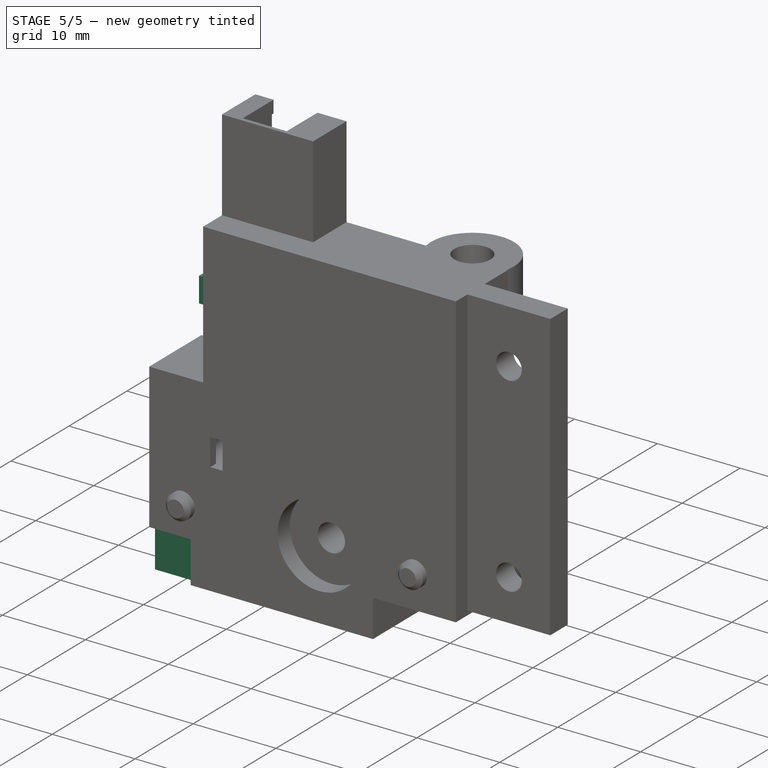
[diagram: stage 5 of 5 — iso view after this stage's code; geometry added in this stage tinted green]
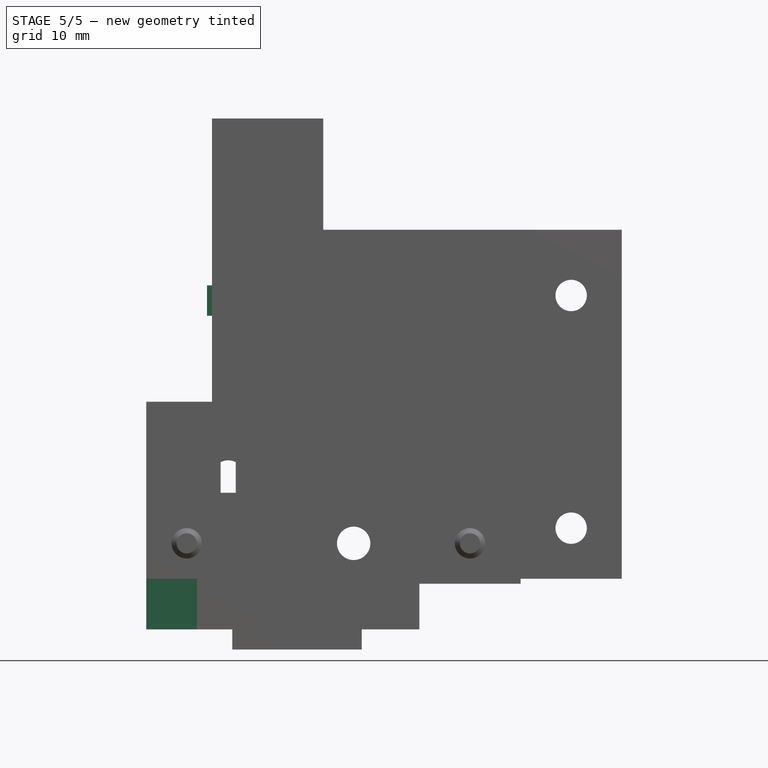
[diagram: stage 5 of 5 — front view after this stage's code; geometry added in this stage tinted green]
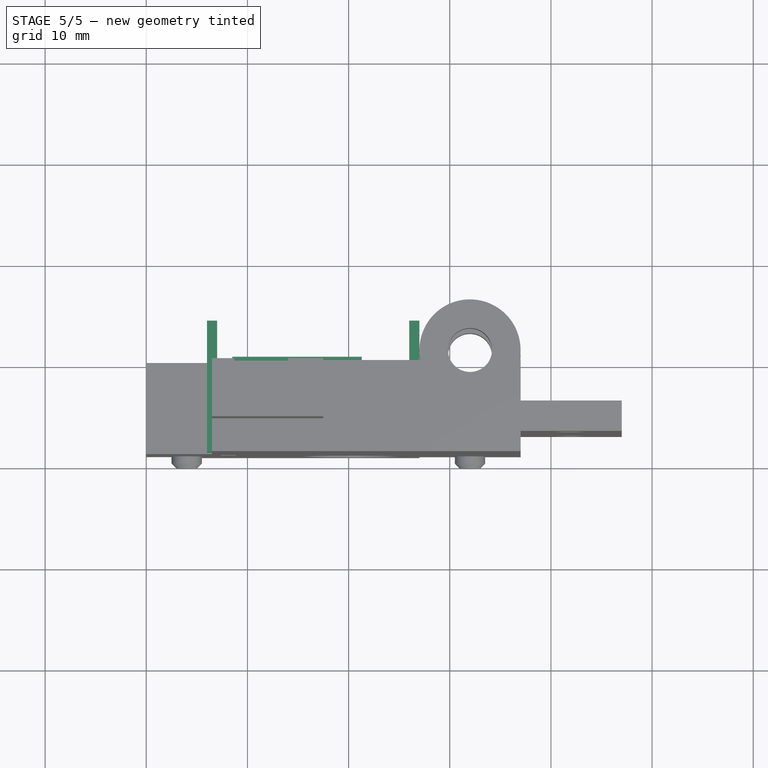
[diagram: stage 5 of 5 — top view after this stage's code; geometry added in this stage tinted green]
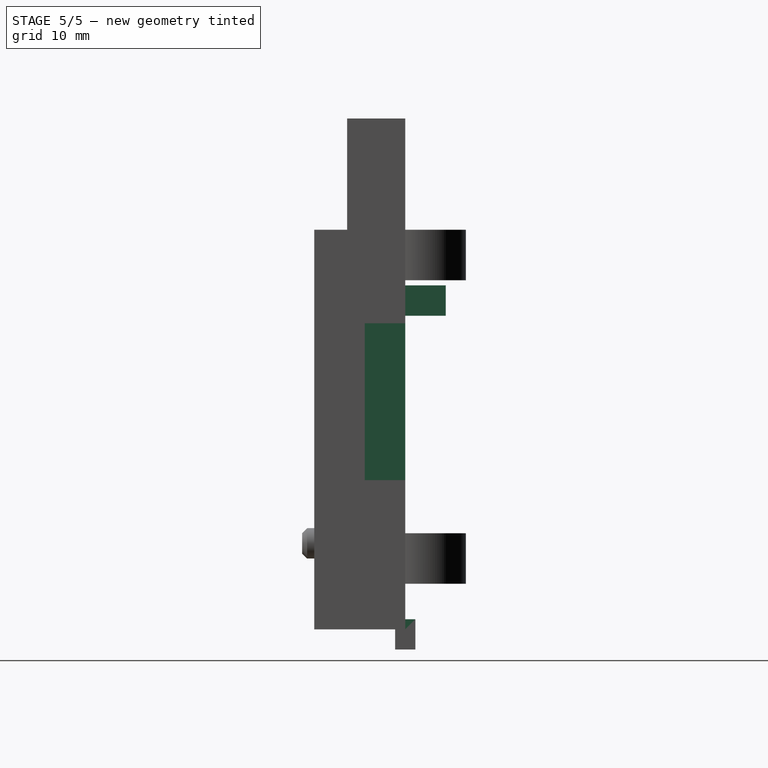
[diagram: stage 5 of 5 — right view after this stage's code; geometry added in this stage tinted green]
FEATURE [Sketcher::SketchObject] Sketch024
  ArcFitTolerance = 1e-06
  AttachmentSupport = -> [Pocket007]
  FullyConstrained = true
  MakeInternals = false
  MapMode = 5
  Placement = pos=(0,4.3e-15,0) rot=(-1,0,0;1.5708rad)
  sketch-geometry (4):
    g0: LineSegment StartX=37 StartY=-14.75 StartZ=0 EndX=20 EndY=-14.75 EndZ=0
    g1: LineSegment StartX=20 StartY=-14.75 StartZ=0 EndX=20 EndY=-30.25 EndZ=0
    g2: LineSegment StartX=20 StartY=-30.25 StartZ=0 EndX=37 EndY=-30.25 EndZ=0
    g3: LineSegment StartX=37 StartY=-30.25 StartZ=0 EndX=37 EndY=-14.75 EndZ=0
  constraints (12):
    c: Coincident(g0,g1)
    c: Coincident(g1,g2)
    c: Coincident(g2,g3)
    c: Coincident(g3,g0)
    c: Horizontal(g0)
    c: Horizontal(g2)
    c: Vertical(g1)
    c: Vertical(g3)
    c: Distance(g1,g3) = 17
    c: Distance(g0,g2) = 15.5
    c: DistanceX(g-1,g1) = 20
    c: DistanceY(g0,g-1) = 14.75
FEATURE [PartDesign::Pocket] Pocket008
  BaseFeature = -> Pocket007
  Direction = (0,-1,-2e-16)
  Length = 5
  Length2 = 5
  Placement = pos=(0,0,0) rot=(1,0,0;1.5708rad)
  Profile = -> Sketch024
  ReferenceAxis = -> Sketch024 [N_Axis]
  Refine = true
  Suppressed = false
  Type = 0
FEATURE [Sketcher::SketchObject] Sketch025
  ArcFitTolerance = 1e-06
  AttachmentSupport = -> [Pocket008]
  FullyConstrained = true
  MakeInternals = false
  MapMode = 5
  Placement = pos=(0,1,0) rot=(-1,0,0;1.5708rad)
FEATURE [Sketcher::SketchObject] Sketch026
  ArcFitTolerance = 1e-06
  AttachmentSupport = -> [Pocket008]
  FullyConstrained = true
  MakeInternals = false
  MapMode = 5
  Placement = pos=(0,0,0) rot=(0,0,1;3.14159rad)
  sketch-geometry (4):
    g0: LineSegment StartX=-8.5 StartY=-1 StartZ=0 EndX=-8.5 EndY=0 EndZ=0
    g1: LineSegment StartX=-8.5 StartY=0 StartZ=0 EndX=-21.3 EndY=0 EndZ=0
    g2: LineSegment StartX=-21.3 StartY=0 StartZ=0 EndX=-21.3 EndY=-1 EndZ=0
    g3: LineSegment StartX=-21.3 StartY=-1 StartZ=0 EndX=-8.5 EndY=-1 EndZ=0
  constraints (12):
    c: Coincident(g0,g1)
    c: Coincident(g1,g2)
    c: Coincident(g2,g3)
    c: Coincident(g3,g0)
    c: Vertical(g0)
    c: Vertical(g2)
    c: Horizontal(g1)
    c: Horizontal(g3)
    c: Distance(g0,g2) = 12.8
    c: Distance(g1,g3) = 1
    c: PointOnObject(g1,g-1)
    c: DistanceX(g0,g-1) = 8.5
FEATURE [PartDesign::Pad] Pad009
  BaseFeature = -> Pocket008
  Direction = (0,0,1)
  Length = 1
  Length2 = 10
  Placement = pos=(0,0,0) rot=(1,0,0;1.5708rad)
  Profile = -> Sketch026
  ReferenceAxis = -> Sketch026 [N_Axis]
  Refine = true
  Suppressed = false
  Type = 0
FEATURE [Sketcher::SketchObject] Sketch027
  ArcFitTolerance = 1e-06
  AttachmentSupport = -> [Pad009]
  FullyConstrained = true
  MakeInternals = false
  MapMode = 5
  Placement = pos=(0,4.3e-15,0) rot=(-1,0,0;1.5708rad)
  sketch-geometry (4):
    g0: LineSegment StartX=27 StartY=-31 StartZ=0 EndX=26 EndY=-31 EndZ=0
    g1: LineSegment StartX=26 StartY=-31 StartZ=0 EndX=26 EndY=-34 EndZ=0
    g2: LineSegment StartX=26 StartY=-34 StartZ=0 EndX=27 EndY=-34 EndZ=0
    g3: LineSegment StartX=27 StartY=-34 StartZ=0 EndX=27 EndY=-31 EndZ=0
  constraints (12):
    c: Coincident(g0,g1)
    c: Coincident(g1,g2)
    c: Coincident(g2,g3)
    c: Coincident(g3,g0)
    c: Horizontal(g0)
    c: Horizontal(g2)
    c: Vertical(g1)
    c: Vertical(g3)
    c: Distance(g1,g3) = 1
    c: Distance(g0,g2) = 3
    c: DistanceX(g-1,g1) = 26
    c: DistanceY(g0,g-1) = 31
FEATURE [PartDesign::Pad] Pad010
  BaseFeature = -> Pad009
  Direction = (0,1,2e-16)
  Length = 4
  Length2 = 10
  Placement = pos=(0,0,0) rot=(1,0,0;1.5708rad)
  Profile = -> Sketch027
  ReferenceAxis = -> Sketch027 [N_Axis]
  Refine = true
  Suppressed = false
  Type = 0
FEATURE [Sketcher::SketchObject] Sketch028
  ArcFitTolerance = 1e-06
  AttachmentSupport = -> [Pad010]
  FullyConstrained = true
  MakeInternals = false
  MapMode = 5
  Placement = pos=(0,4.3e-15,0) rot=(-1,0,0;1.5708rad)
  sketch-geometry (4):
    g0: LineSegment StartX=6 StartY=-31 StartZ=0 EndX=6 EndY=-34 EndZ=0
    g1: LineSegment StartX=6 StartY=-34 StartZ=0 EndX=7 EndY=-34 EndZ=0
    g2: LineSegment StartX=7 StartY=-34 StartZ=0 EndX=7 EndY=-31 EndZ=0
    g3: LineSegment StartX=7 StartY=-31 StartZ=0 EndX=6 EndY=-31 EndZ=0
  constraints (12):
    c: Coincident(g0,g1)
    c: Coincident(g1,g2)
    c: Coincident(g2,g3)
    c: Coincident(g3,g0)
    c: Vertical(g0)
    c: Vertical(g2)
    c: Horizontal(g1)
    c: Horizontal(g3)
    c: Distance(g0,g2) = 1
    c: Distance(g1,g3) = 3
    c: DistanceY(g2,g-1) = 31
    c: DistanceX(g-1,g0) = 6
FEATURE [PartDesign::Pad] Pad011
  BaseFeature = -> Pad010
  Direction = (0,1,2e-16)
  Length = 4
  Length2 = 10
  Placement = pos=(0,0,0) rot=(1,0,0;1.5708rad)
  Profile = -> Sketch028
  ReferenceAxis = -> Sketch028 [N_Axis]
  Refine = true
  Suppressed = false
  Type = 0
FEATURE [Sketcher::SketchObject] Sketch029
  ArcFitTolerance = 1e-06
  AttachmentSupport = -> [Pad011]
  FullyConstrained = true
  MakeInternals = false
  MapMode = 5
  Placement = pos=(0,-2.9e-15,0) rot=(1,0,0;1.5708rad)
  sketch-geometry (4):
    g0: LineSegment StartX=6 StartY=34 StartZ=0 EndX=6 EndY=31 EndZ=0
    g1: LineSegment StartX=6 StartY=31 StartZ=0 EndX=6.5 EndY=31 EndZ=0
    g2: LineSegment StartX=6.5 StartY=31 StartZ=0 EndX=6.5 EndY=34 EndZ=0
    g3: LineSegment StartX=6.5 StartY=34 StartZ=0 EndX=6 EndY=34 EndZ=0
  constraints (12):
    c: Coincident(g0,g1)
    c: Coincident(g1,g2)
    c: Coincident(g2,g3)
    c: Coincident(g3,g0)
    c: Vertical(g0)
    c: Vertical(g2)
    c: Horizontal(g1)
    c: Horizontal(g3)
    c: DistanceX(g-1,g0) = 6
    c: DistanceY(g-1,g0) = 31
    c: DistanceX(g-1,g2) = 6.5
    c: DistanceY(g-1,g0) = 34
FEATURE [PartDesign::Pad] Pad012
  BaseFeature = -> Pad011
  Direction = (0,-1,2e-16)
  Length = 9
  Length2 = 10
  Placement = pos=(0,0,0) rot=(1,0,0;1.5708rad)
  Profile = -> Sketch029
  ReferenceAxis = -> Sketch029 [N_Axis]
  Refine = true
  Suppressed = false
  Type = 0
FEATURE [Sketcher::SketchObject] Sketch030
  ArcFitTolerance = 1e-06
  AttachmentSupport = -> [Pad012]
  FullyConstrained = true
  MakeInternals = false
  MapMode = 5
  Placement = pos=(0,-9,-2e-15) rot=(1,0,0;1.5708rad)
  sketch-geometry (4):
    g0: LineSegment StartX=0 StartY=0 StartZ=0 EndX=5 EndY=0 EndZ=0
    g1: LineSegment StartX=5 StartY=0 StartZ=0 EndX=5 EndY=5 EndZ=0
    g2: LineSegment StartX=5 StartY=5 StartZ=0 EndX=0 EndY=5 EndZ=0
    g3: LineSegment StartX=0 StartY=5 StartZ=0 EndX=0 EndY=0 EndZ=0
  constraints (11):
    c: Coincident(g0,g1)
    c: Coincident(g1,g2)
    c: Coincident(g2,g3)
    c: Coincident(g3,g0)
    c: Horizontal(g0)
    c: Horizontal(g2)
    c: Vertical(g1)
    c: Vertical(g3)
    c: Distance(g1,g3) = 5
    c: Distance(g0,g2) = 5
    c: Coincident(g0,g-1)
FEATURE [PartDesign::Pocket] Pocket009
  BaseFeature = -> Pad012
  Direction = (0,1,-2e-16)
  Length = 1
  Length2 = 5
  Placement = pos=(0,0,0) rot=(1,0,0;1.5708rad)
  Profile = -> Sketch030
  ReferenceAxis = -> Sketch030 [N_Axis]
  Refine = true
  Suppressed = false
  Type = 0
FEATURE [PartDesign::Body] Body
  AllowCompound = false
  Group = -> [Sketch,Pad,Sketch001,Sketch002,Pad001,Chamfer,Sketch003,Pocket,Sketch004,Hole,Sketch005,Pad002,Chamfer001,Sketch006,Pad003,Sketch007,Hole001,Sketch008,Pad004,Sketch009,Hole002,Sketch010,Pocket001,Sketch011,Pad005,Sketch012,Pad006,Sketch013,Hole003,Sketch014,Hole004,Sketch015,Pocket002,Sketch016,Pocket003,Sketch017,Sketch018,Pad007,Sketch019,Pocket004,Sketch020,Pocket005,Sketch021,Pocket006,+17 more]
  Origin = -> Origin
  Tip = -> Pocket009
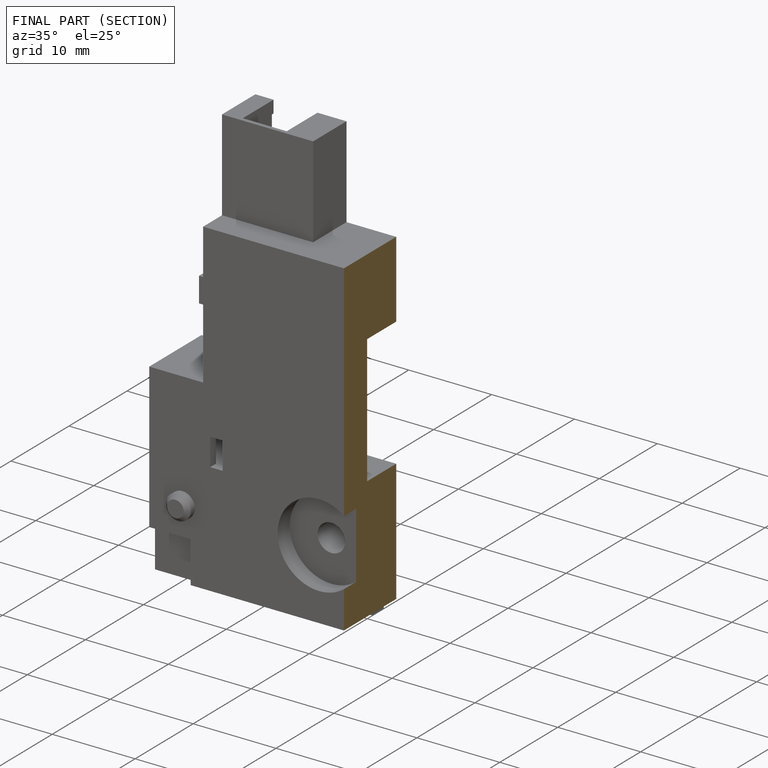
[diagram: finished part — half-section view (interior)]
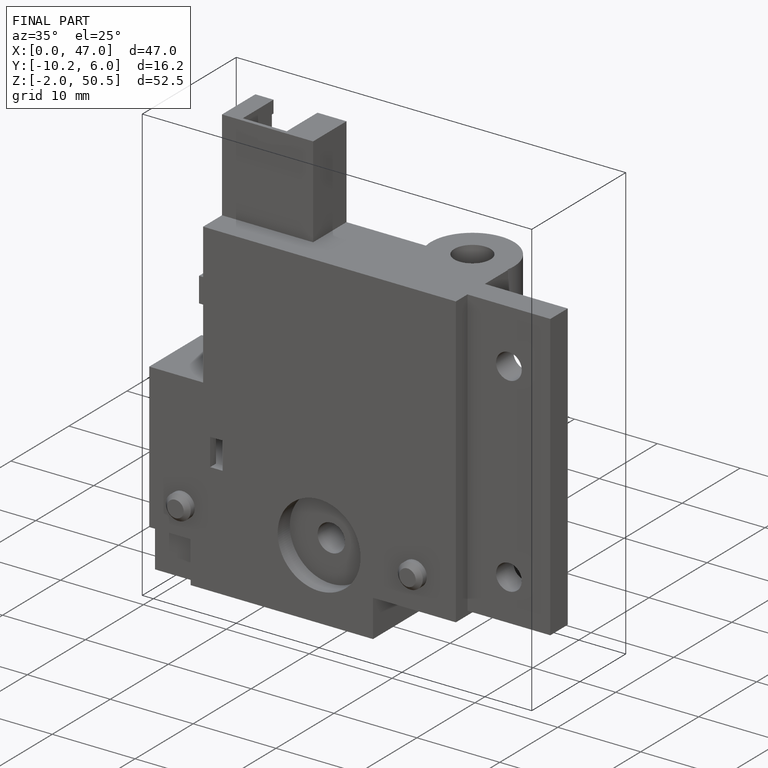
[diagram: finished part — iso view with bounding-box wireframe]
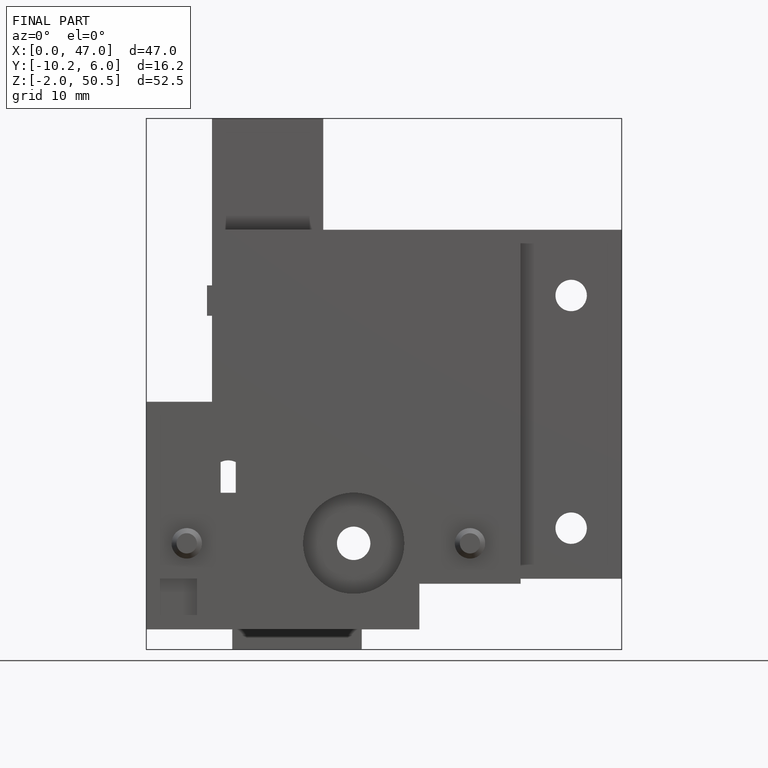
[diagram: finished part — front view with bounding-box wireframe]
